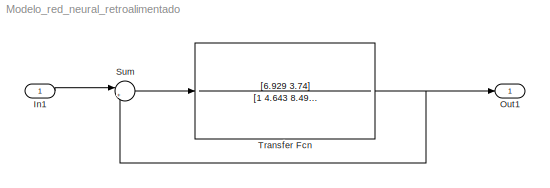
MODEL Modelo_red_neural_retroalimentado
KIND model
BLOCK [Inport] In1
  IconDisplay = Port number
  SID = 12
BLOCK [Outport] Out1
  IconDisplay = Port number
  SID = 13
BLOCK [Sum] Sum
  IconShape = round
  InputSameDT = off
  Inputs = |+-
  OutDataTypeStr = Inherit: Inherit via internal rule
  Ports = [2, 1]
  SID = 14
  SaturateOnIntegerOverflow = off
BLOCK [TransferFcn] Transfer Fcn
  Denominator = [1 4.643 8.499 3.584]
  Numerator = [6.929 3.74]
  SID = 5
LINE In1:1 -> Sum:1
LINE Sum:1 -> Transfer Fcn:1
NET Transfer Fcn:1 -> Out1:1, Sum:2
note: NET lines group one-source signal fan-out (src -> all destinations, sorted); 1:1 wires keep LINE
